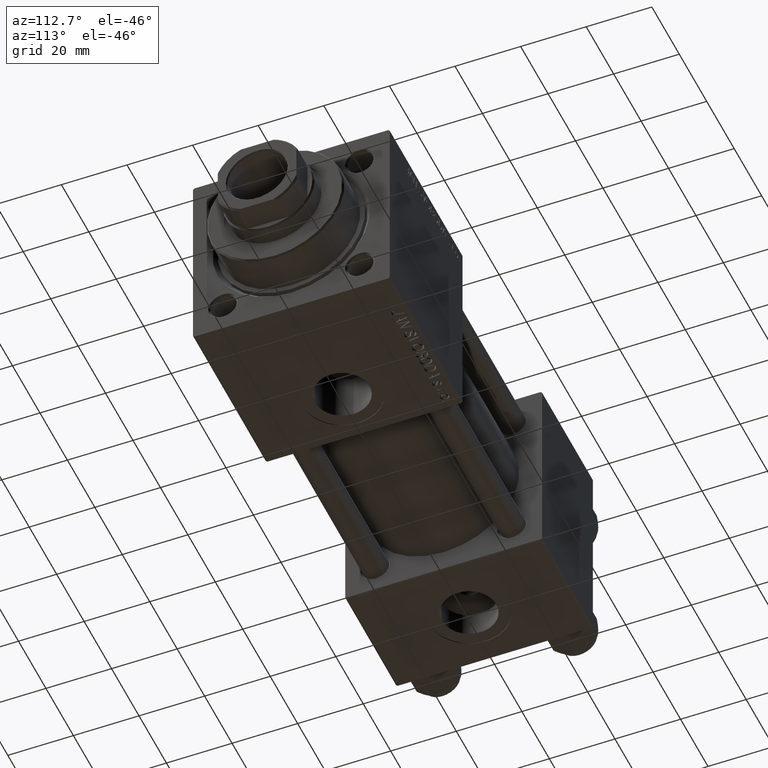
[diagram: clean part render]
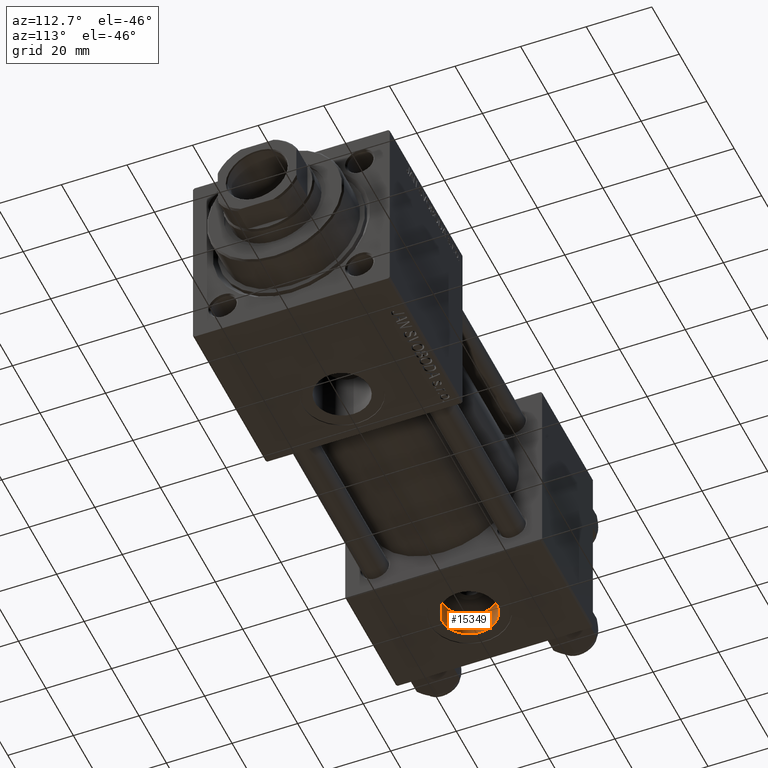
[diagram: same view with one face highlighted and labeled with its STEP entity id]
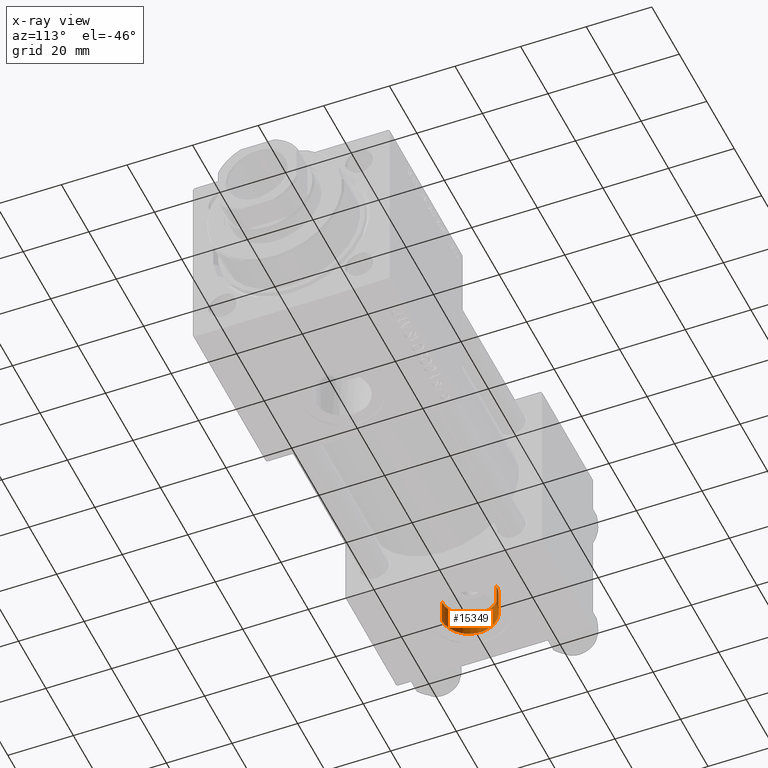
[diagram: x-ray of the same camera — body ghosted, the highlighted face saturated]
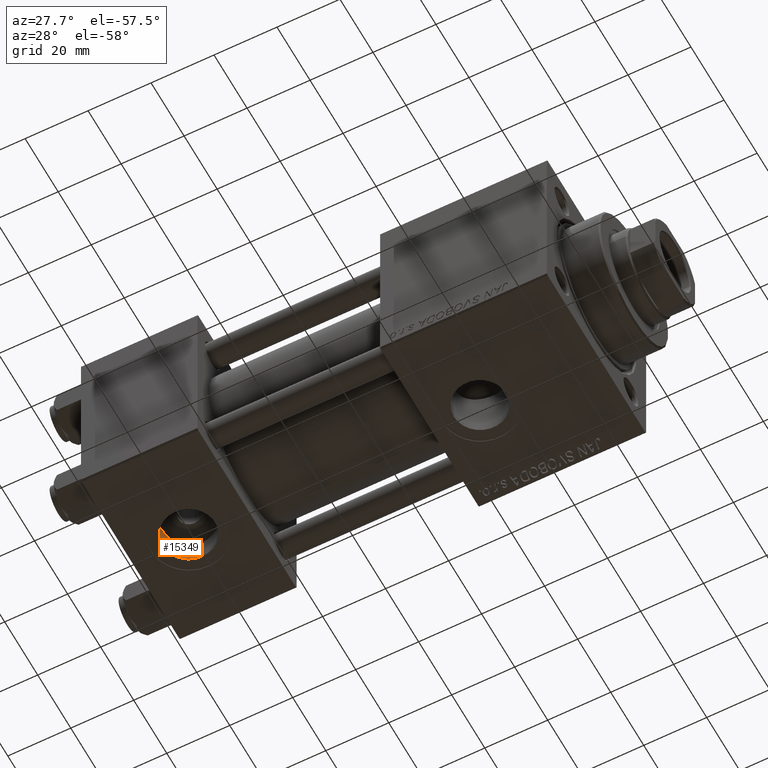
[diagram: same view with one face highlighted and labeled with its STEP entity id]
A machine part, auxiliary view. The second image highlights one B-rep face of the part: STEP entity #15349.
The next image is the same camera in x-ray: the body ghosted, the highlighted face saturated — about 0% of this face is hidden behind the body in this view.
A second angle (auxiliary view) of the same face is appended — the face is thin or edge-on in the first view.
In plain terms, the highlighted cylindrical surface (edge-blend (fillet) strip) has radius 8.33 mm, axis along (-0, -0, -1).
Its self-contained STEP definition (entity closure, byte-faithful):
#679 = ORIENTED_EDGE ( 'NONE', *, *, #26791, .T. ) ;
#987 = DIRECTION ( 'NONE',  ( 0.000000000000000000, -1.734723475976806848E-16, -1.000000000000000000 ) ) ;
#7525 = AXIS2_PLACEMENT_3D ( 'NONE', #40670, #987, #36718 ) ;
#7907 = VERTEX_POINT ( 'NONE', #25989 ) ;
#7948 = DIRECTION ( 'NONE',  ( -0.000000000000000000, -1.734723475976806848E-16, -1.000000000000000000 ) ) ;
#8593 = DIRECTION ( 'NONE',  ( 0.000000000000000000, 1.000000000000000000, 0.000000000000000000 ) ) ;
#11248 = LINE ( 'NONE', #23855, #49124 ) ;
#13864 = DIRECTION ( 'NONE',  ( -0.000000000000000000, -1.734723475976806848E-16, -1.000000000000000000 ) ) ;
#15349 = ADVANCED_FACE ( 'NONE', ( #40784 ), #16630, .F. ) ;
#15969 = DIRECTION ( 'NONE',  ( -0.000000000000000000, -1.734723475976806848E-16, -1.000000000000000000 ) ) ;
#16630 = CYLINDRICAL_SURFACE ( 'NONE', #46252, 8.330000000000000071 ) ;
#16764 = CIRCLE ( 'NONE', #7525, 8.330000000000000071 ) ;
#18803 = ORIENTED_EDGE ( 'NONE', *, *, #22895, .F. ) ;
#20560 = DIRECTION ( 'NONE',  ( 0.000000000000000000, 1.000000000000000000, 0.000000000000000000 ) ) ;
#20740 = CIRCLE ( 'NONE', #27445, 8.330000000000000071 ) ;
#21332 = CARTESIAN_POINT ( 'NONE',  ( 18.50000000000000355, 8.330000000000003624, -22.34000000000003894 ) ) ;
#22895 = EDGE_CURVE ( 'NONE', #29160, #7907, #11248, .T. ) ;
#23855 = CARTESIAN_POINT ( 'NONE',  ( 18.50000000000000355, 8.330000000000003624, -19.20000000000000284 ) ) ;
#25989 = CARTESIAN_POINT ( 'NONE',  ( 18.50000000000000355, 8.330000000000001847, -29.80000000000000426 ) ) ;
#26791 = EDGE_CURVE ( 'NONE', #48797, #38049, #34083, .T. ) ;
#27445 = AXIS2_PLACEMENT_3D ( 'NONE', #44591, #44330, #8593 ) ;
#29160 = VERTEX_POINT ( 'NONE', #21332 ) ;
#32837 = CARTESIAN_POINT ( 'NONE',  ( 18.50000000000000355, -8.329999999999998295, -29.80000000000000426 ) ) ;
#33111 = EDGE_CURVE ( 'NONE', #38049, #7907, #16764, .T. ) ;
#33561 = CARTESIAN_POINT ( 'NONE',  ( 18.50000000000000355, -8.329999999999996518, -19.20000000000000284 ) ) ;
#34083 = LINE ( 'NONE', #33561, #48402 ) ;
#35517 = EDGE_LOOP ( 'NONE', ( #41400, #679, #49521, #18803 ) ) ;
#35655 = CARTESIAN_POINT ( 'NONE',  ( 18.50000000000000355, -8.329999999999996518, -22.34000000000003894 ) ) ;
#36718 = DIRECTION ( 'NONE',  ( 0.000000000000000000, 1.000000000000000000, 0.000000000000000000 ) ) ;
#38049 = VERTEX_POINT ( 'NONE', #32837 ) ;
#40270 = CARTESIAN_POINT ( 'NONE',  ( 18.50000000000000355, 4.138519464031727023E-15, -19.20000000000000284 ) ) ;
#40670 = CARTESIAN_POINT ( 'NONE',  ( 18.50000000000000355, 2.299712579496311503E-15, -29.80000000000000426 ) ) ;
#40784 = FACE_OUTER_BOUND ( 'NONE', #35517, .T. ) ;
#41400 = ORIENTED_EDGE ( 'NONE', *, *, #49557, .T. ) ;
#44330 = DIRECTION ( 'NONE',  ( -0.000000000000000000, 1.734723475976805862E-16, 1.000000000000000000 ) ) ;
#44591 = CARTESIAN_POINT ( 'NONE',  ( 18.50000000000000355, 3.593816292575003284E-15, -22.34000000000003894 ) ) ;
#46252 = AXIS2_PLACEMENT_3D ( 'NONE', #40270, #7948, #20560 ) ;
#48402 = VECTOR ( 'NONE', #13864, 1000.000000000000000 ) ;
#48797 = VERTEX_POINT ( 'NONE', #35655 ) ;
#49124 = VECTOR ( 'NONE', #15969, 1000.000000000000000 ) ;
#49521 = ORIENTED_EDGE ( 'NONE', *, *, #33111, .T. ) ;
#49557 = EDGE_CURVE ( 'NONE', #29160, #48797, #20740, .T. ) ;